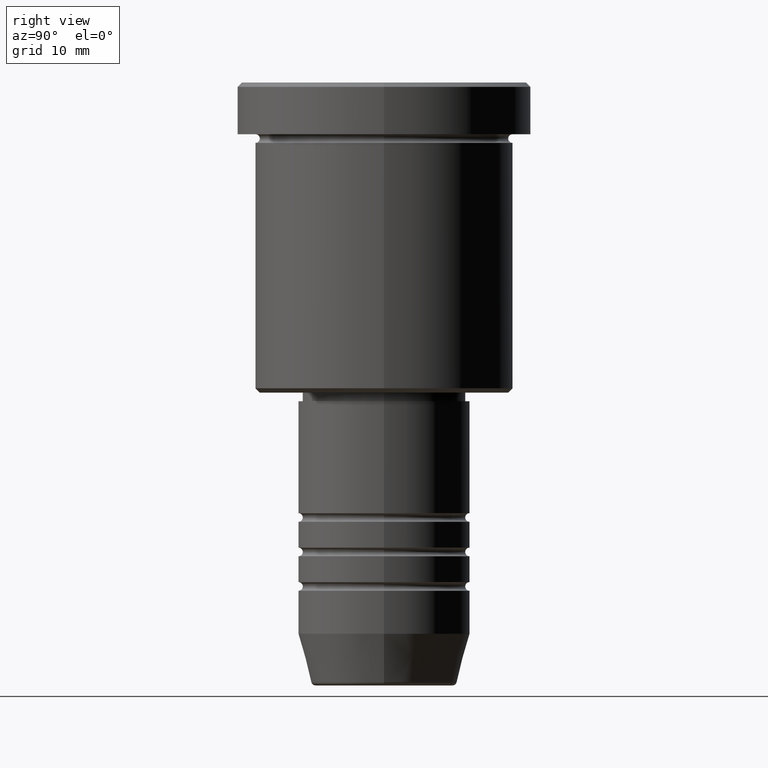
[diagram: clean part render]
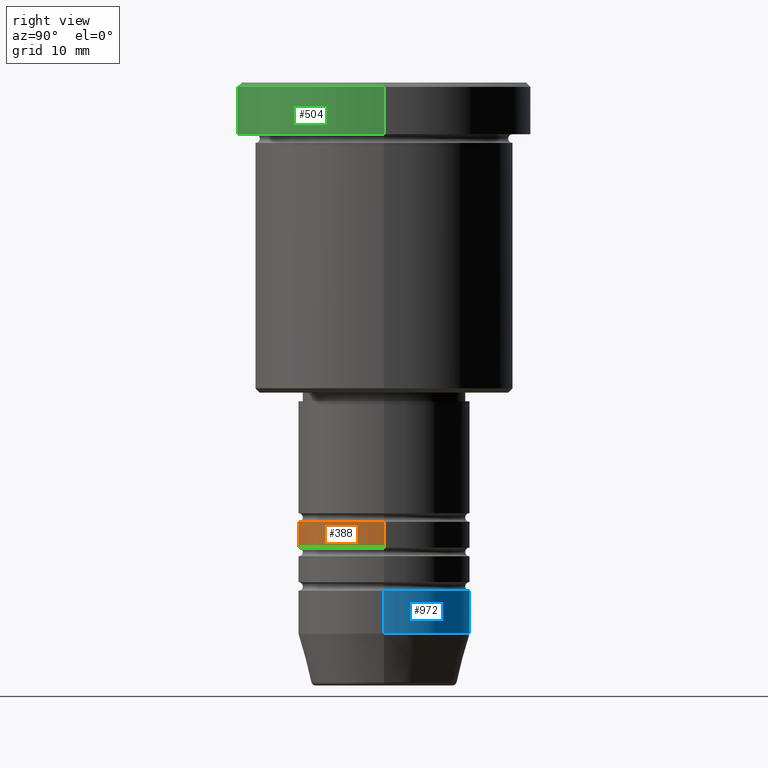
[diagram: same view with three faces highlighted in distinct colors, each labeled with its STEP entity id]
A machine part, right view with three faces highlighted in distinct colors.
Their STEP definitions:

[orange] entity #388 — the highlighted cylindrical surface (partial cylindrical patch) has radius 10 mm, axis along (-0, -0, 1).
#3 = EDGE_CURVE ( 'NONE', #956, #82, #727, .T. ) ;
#6 = CARTESIAN_POINT ( 'NONE',  ( 10.00000000000000178, 0.000000000000000000, -53.99999999999999289 ) ) ;
#9 = VERTEX_POINT ( 'NONE', #152 ) ;
#43 = DIRECTION ( 'NONE',  ( 1.000000000000000000, 0.000000000000000000, 0.000000000000000000 ) ) ;
#82 = VERTEX_POINT ( 'NONE', #6 ) ;
#94 = AXIS2_PLACEMENT_3D ( 'NONE', #350, #439, #43 ) ;
#125 = DIRECTION ( 'NONE',  ( 1.000000000000000000, 0.000000000000000000, 0.000000000000000000 ) ) ;
#152 = CARTESIAN_POINT ( 'NONE',  ( 10.00000000000000000, 0.000000000000000000, -51.00000000000000000 ) ) ;
#229 = ORIENTED_EDGE ( 'NONE', *, *, #341, .T. ) ;
#243 = CARTESIAN_POINT ( 'NONE',  ( 0.000000000000000000, 0.000000000000000000, -53.99999999999999289 ) ) ;
#245 = CIRCLE ( 'NONE', #1072, 10.00000000000000000 ) ;
#250 = FACE_OUTER_BOUND ( 'NONE', #861, .T. ) ;
#284 = AXIS2_PLACEMENT_3D ( 'NONE', #243, #603, #969 ) ;
#299 = VERTEX_POINT ( 'NONE', #1018 ) ;
#341 = EDGE_CURVE ( 'NONE', #82, #9, #682, .T. ) ;
#350 = CARTESIAN_POINT ( 'NONE',  ( 0.000000000000000000, 0.000000000000000000, 0.000000000000000000 ) ) ;
#356 = VECTOR ( 'NONE', #501, 1000.000000000000000 ) ;
#388 = ADVANCED_FACE ( 'NONE', ( #250 ), #531, .T. ) ;
#393 = CARTESIAN_POINT ( 'NONE',  ( -10.00000000000000178, 1.224646799147353454E-15, 0.000000000000000000 ) ) ;
#406 = CARTESIAN_POINT ( 'NONE',  ( -10.00000000000000178, 1.224646799147353454E-15, -53.99999999999999289 ) ) ;
#439 = DIRECTION ( 'NONE',  ( -0.000000000000000000, -0.000000000000000000, 1.000000000000000000 ) ) ;
#501 = DIRECTION ( 'NONE',  ( -0.000000000000000000, -0.000000000000000000, 1.000000000000000000 ) ) ;
#531 = CYLINDRICAL_SURFACE ( 'NONE', #94, 10.00000000000000178 ) ;
#600 = EDGE_CURVE ( 'NONE', #299, #9, #245, .T. ) ;
#603 = DIRECTION ( 'NONE',  ( -0.000000000000000000, -0.000000000000000000, 1.000000000000000000 ) ) ;
#682 = LINE ( 'NONE', #786, #870 ) ;
#686 = CARTESIAN_POINT ( 'NONE',  ( 0.000000000000000000, 0.000000000000000000, -51.00000000000000000 ) ) ;
#727 = CIRCLE ( 'NONE', #284, 10.00000000000000178 ) ;
#786 = CARTESIAN_POINT ( 'NONE',  ( 10.00000000000000178, 0.000000000000000000, 0.000000000000000000 ) ) ;
#855 = ORIENTED_EDGE ( 'NONE', *, *, #600, .F. ) ;
#856 = EDGE_CURVE ( 'NONE', #956, #299, #940, .T. ) ;
#861 = EDGE_LOOP ( 'NONE', ( #993, #902, #229, #855 ) ) ;
#870 = VECTOR ( 'NONE', #1137, 1000.000000000000000 ) ;
#902 = ORIENTED_EDGE ( 'NONE', *, *, #3, .T. ) ;
#940 = LINE ( 'NONE', #393, #356 ) ;
#956 = VERTEX_POINT ( 'NONE', #406 ) ;
#961 = DIRECTION ( 'NONE',  ( -0.000000000000000000, -0.000000000000000000, 1.000000000000000000 ) ) ;
#969 = DIRECTION ( 'NONE',  ( 1.000000000000000000, 0.000000000000000000, 0.000000000000000000 ) ) ;
#993 = ORIENTED_EDGE ( 'NONE', *, *, #856, .F. ) ;
#1018 = CARTESIAN_POINT ( 'NONE',  ( -10.00000000000000000, 1.224646799147353256E-15, -51.00000000000000000 ) ) ;
#1072 = AXIS2_PLACEMENT_3D ( 'NONE', #686, #961, #125 ) ;
#1137 = DIRECTION ( 'NONE',  ( -0.000000000000000000, -0.000000000000000000, 1.000000000000000000 ) ) ;

[blue] entity #972 — the highlighted cylindrical surface (partial cylindrical patch) has radius 10 mm, axis along (-0, -0, 1).
#34 = ORIENTED_EDGE ( 'NONE', *, *, #253, .F. ) ;
#61 = ORIENTED_EDGE ( 'NONE', *, *, #967, .T. ) ;
#80 = CARTESIAN_POINT ( 'NONE',  ( -10.00000000000000000, 1.224646799147353256E-15, -59.00000000000000711 ) ) ;
#87 = VERTEX_POINT ( 'NONE', #552 ) ;
#114 = LINE ( 'NONE', #520, #459 ) ;
#117 = VERTEX_POINT ( 'NONE', #357 ) ;
#232 = DIRECTION ( 'NONE',  ( 1.000000000000000000, 0.000000000000000000, 0.000000000000000000 ) ) ;
#253 = EDGE_CURVE ( 'NONE', #87, #493, #1033, .T. ) ;
#290 = DIRECTION ( 'NONE',  ( -0.000000000000000000, -0.000000000000000000, 1.000000000000000000 ) ) ;
#321 = DIRECTION ( 'NONE',  ( 1.000000000000000000, 0.000000000000000000, 0.000000000000000000 ) ) ;
#340 = ORIENTED_EDGE ( 'NONE', *, *, #797, .F. ) ;
#343 = EDGE_LOOP ( 'NONE', ( #61, #989, #340, #34 ) ) ;
#357 = CARTESIAN_POINT ( 'NONE',  ( -10.00000000000000178, 1.224646799147353454E-15, -64.00000000000000000 ) ) ;
#420 = CIRCLE ( 'NONE', #936, 10.00000000000000178 ) ;
#459 = VECTOR ( 'NONE', #512, 1000.000000000000000 ) ;
#493 = VERTEX_POINT ( 'NONE', #1116 ) ;
#512 = DIRECTION ( 'NONE',  ( -0.000000000000000000, -0.000000000000000000, 1.000000000000000000 ) ) ;
#520 = CARTESIAN_POINT ( 'NONE',  ( -10.00000000000000178, 1.224646799147353454E-15, 0.000000000000000000 ) ) ;
#552 = CARTESIAN_POINT ( 'NONE',  ( 10.00000000000000178, 0.000000000000000000, -64.00000000000000000 ) ) ;
#580 = DIRECTION ( 'NONE',  ( 1.000000000000000000, 0.000000000000000000, 0.000000000000000000 ) ) ;
#598 = CYLINDRICAL_SURFACE ( 'NONE', #891, 10.00000000000000178 ) ;
#697 = DIRECTION ( 'NONE',  ( -0.000000000000000000, -0.000000000000000000, 1.000000000000000000 ) ) ;
#726 = AXIS2_PLACEMENT_3D ( 'NONE', #851, #948, #580 ) ;
#797 = EDGE_CURVE ( 'NONE', #493, #995, #832, .T. ) ;
#832 = CIRCLE ( 'NONE', #726, 10.00000000000000000 ) ;
#851 = CARTESIAN_POINT ( 'NONE',  ( 0.000000000000000000, 0.000000000000000000, -59.00000000000000711 ) ) ;
#891 = AXIS2_PLACEMENT_3D ( 'NONE', #964, #1057, #232 ) ;
#911 = EDGE_CURVE ( 'NONE', #117, #995, #114, .T. ) ;
#936 = AXIS2_PLACEMENT_3D ( 'NONE', #1139, #697, #321 ) ;
#948 = DIRECTION ( 'NONE',  ( -0.000000000000000000, -0.000000000000000000, 1.000000000000000000 ) ) ;
#964 = CARTESIAN_POINT ( 'NONE',  ( 0.000000000000000000, 0.000000000000000000, 0.000000000000000000 ) ) ;
#967 = EDGE_CURVE ( 'NONE', #87, #117, #420, .T. ) ;
#972 = ADVANCED_FACE ( 'NONE', ( #1048 ), #598, .T. ) ;
#989 = ORIENTED_EDGE ( 'NONE', *, *, #911, .T. ) ;
#995 = VERTEX_POINT ( 'NONE', #80 ) ;
#1026 = CARTESIAN_POINT ( 'NONE',  ( 10.00000000000000178, 0.000000000000000000, 0.000000000000000000 ) ) ;
#1033 = LINE ( 'NONE', #1026, #1145 ) ;
#1048 = FACE_OUTER_BOUND ( 'NONE', #343, .T. ) ;
#1057 = DIRECTION ( 'NONE',  ( -0.000000000000000000, -0.000000000000000000, 1.000000000000000000 ) ) ;
#1116 = CARTESIAN_POINT ( 'NONE',  ( 10.00000000000000000, 0.000000000000000000, -59.00000000000000711 ) ) ;
#1139 = CARTESIAN_POINT ( 'NONE',  ( 0.000000000000000000, 0.000000000000000000, -64.00000000000000000 ) ) ;
#1145 = VECTOR ( 'NONE', #290, 1000.000000000000000 ) ;

[green] entity #504 — the highlighted cylindrical surface (partial cylindrical patch) has radius 17 mm, axis along (-0, -0, 1).
#32 = DIRECTION ( 'NONE',  ( 1.000000000000000000, 0.000000000000000000, 0.000000000000000000 ) ) ;
#40 = CARTESIAN_POINT ( 'NONE',  ( 0.000000000000000000, 0.000000000000000000, -5.999999999999994671 ) ) ;
#86 = DIRECTION ( 'NONE',  ( 0.000000000000000000, 0.000000000000000000, -1.000000000000000000 ) ) ;
#111 = VECTOR ( 'NONE', #273, 1000.000000000000000 ) ;
#177 = CARTESIAN_POINT ( 'NONE',  ( 17.00000000000000000, 0.000000000000000000, -0.5000000000000073275 ) ) ;
#221 = DIRECTION ( 'NONE',  ( -0.000000000000000000, -0.000000000000000000, 1.000000000000000000 ) ) ;
#236 = VERTEX_POINT ( 'NONE', #748 ) ;
#273 = DIRECTION ( 'NONE',  ( -0.000000000000000000, -0.000000000000000000, 1.000000000000000000 ) ) ;
#274 = EDGE_LOOP ( 'NONE', ( #599, #704, #397, #1080 ) ) ;
#283 = AXIS2_PLACEMENT_3D ( 'NONE', #355, #86, #1083 ) ;
#328 = CIRCLE ( 'NONE', #401, 17.00000000000000000 ) ;
#355 = CARTESIAN_POINT ( 'NONE',  ( 0.000000000000000000, 0.000000000000000000, -0.5000000000000073275 ) ) ;
#397 = ORIENTED_EDGE ( 'NONE', *, *, #551, .T. ) ;
#401 = AXIS2_PLACEMENT_3D ( 'NONE', #40, #1037, #32 ) ;
#410 = CARTESIAN_POINT ( 'NONE',  ( -17.00000000000000000, 2.081899558550500280E-15, -0.5000000000000073275 ) ) ;
#419 = EDGE_CURVE ( 'NONE', #715, #1141, #829, .T. ) ;
#491 = CARTESIAN_POINT ( 'NONE',  ( 0.000000000000000000, 0.000000000000000000, 0.000000000000000000 ) ) ;
#504 = ADVANCED_FACE ( 'NONE', ( #1135 ), #680, .T. ) ;
#551 = EDGE_CURVE ( 'NONE', #236, #1176, #669, .T. ) ;
#578 = EDGE_CURVE ( 'NONE', #715, #236, #328, .T. ) ;
#593 = DIRECTION ( 'NONE',  ( -0.000000000000000000, -0.000000000000000000, 1.000000000000000000 ) ) ;
#599 = ORIENTED_EDGE ( 'NONE', *, *, #419, .F. ) ;
#669 = LINE ( 'NONE', #1042, #872 ) ;
#680 = CYLINDRICAL_SURFACE ( 'NONE', #794, 17.00000000000000000 ) ;
#704 = ORIENTED_EDGE ( 'NONE', *, *, #578, .T. ) ;
#715 = VERTEX_POINT ( 'NONE', #1161 ) ;
#748 = CARTESIAN_POINT ( 'NONE',  ( 17.00000000000000000, 0.000000000000000000, -5.999999999999994671 ) ) ;
#764 = DIRECTION ( 'NONE',  ( 1.000000000000000000, 0.000000000000000000, 0.000000000000000000 ) ) ;
#794 = AXIS2_PLACEMENT_3D ( 'NONE', #491, #221, #764 ) ;
#829 = LINE ( 'NONE', #1023, #111 ) ;
#872 = VECTOR ( 'NONE', #593, 1000.000000000000000 ) ;
#937 = CIRCLE ( 'NONE', #283, 17.00000000000000000 ) ;
#1023 = CARTESIAN_POINT ( 'NONE',  ( -17.00000000000000000, 2.081899558550500280E-15, 0.000000000000000000 ) ) ;
#1037 = DIRECTION ( 'NONE',  ( -0.000000000000000000, -0.000000000000000000, 1.000000000000000000 ) ) ;
#1042 = CARTESIAN_POINT ( 'NONE',  ( 17.00000000000000000, 0.000000000000000000, 0.000000000000000000 ) ) ;
#1080 = ORIENTED_EDGE ( 'NONE', *, *, #1172, .T. ) ;
#1083 = DIRECTION ( 'NONE',  ( 1.000000000000000000, 0.000000000000000000, 0.000000000000000000 ) ) ;
#1135 = FACE_OUTER_BOUND ( 'NONE', #274, .T. ) ;
#1141 = VERTEX_POINT ( 'NONE', #410 ) ;
#1161 = CARTESIAN_POINT ( 'NONE',  ( -17.00000000000000000, 2.081899558550500280E-15, -5.999999999999994671 ) ) ;
#1172 = EDGE_CURVE ( 'NONE', #1176, #1141, #937, .T. ) ;
#1176 = VERTEX_POINT ( 'NONE', #177 ) ;